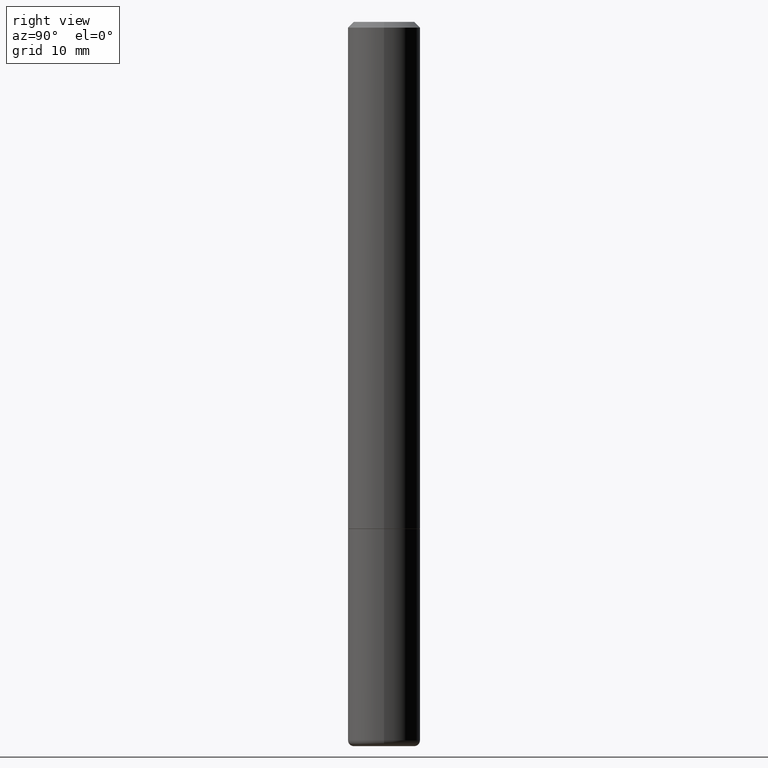
[diagram: clean part render]
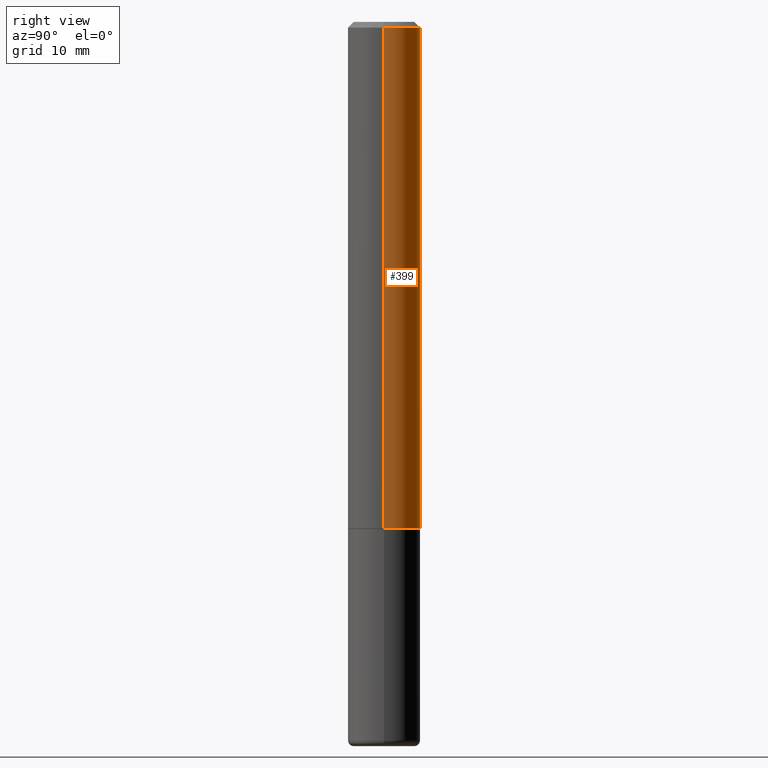
[diagram: same view with one face highlighted and labeled with its STEP entity id]
A machine part, right view. The second image highlights one B-rep face of the part: STEP entity #399.
In plain terms, the highlighted cylindrical surface (edge-blend (fillet) strip) has radius 3.175 mm, axis along (-0, 0, 1).
Its self-contained STEP definition (entity closure, byte-faithful):
#16 = DIRECTION ( 'NONE',  ( -2.445468806185136597E-29, 3.491481338843145583E-15, 1.000000000000000000 ) ) ;
#25 = CARTESIAN_POINT ( 'NONE',  ( -0.1249999999999999029, 8.881784197001245421E-16, -6.148668862818627323E-30 ) ) ;
#47 = VERTEX_POINT ( 'NONE', #113 ) ;
#50 = VERTEX_POINT ( 'NONE', #236 ) ;
#61 = DIRECTION ( 'NONE',  ( 1.000000000000000000, -6.982962677686266711E-15, 0.000000000000000000 ) ) ;
#81 = AXIS2_PLACEMENT_3D ( 'NONE', #305, #16, #125 ) ;
#100 = VERTEX_POINT ( 'NONE', #319 ) ;
#113 = CARTESIAN_POINT ( 'NONE',  ( -0.1249999999999997641, 8.030407079339185615E-16, -0.02000000000000003858 ) ) ;
#115 = CARTESIAN_POINT ( 'NONE',  ( 0.1250000000000000278, -6.979471196347445792E-15, -1.749000000000000110 ) ) ;
#125 = DIRECTION ( 'NONE',  ( 1.000000000000000000, -6.982962677686266711E-15, 4.876176775795935793E-29 ) ) ;
#163 = LINE ( 'NONE', #202, #439 ) ;
#166 = DIRECTION ( 'NONE',  ( -2.445468806185136597E-29, 3.491481338843145583E-15, 1.000000000000000000 ) ) ;
#179 = VECTOR ( 'NONE', #191, 39.37007874015748143 ) ;
#187 = ORIENTED_EDGE ( 'NONE', *, *, #354, .T. ) ;
#189 = CIRCLE ( 'NONE', #246, 0.1250000000000000278 ) ;
#191 = DIRECTION ( 'NONE',  ( -2.445468806185136877E-29, 3.491481338843145188E-15, 1.000000000000000000 ) ) ;
#193 = CYLINDRICAL_SURFACE ( 'NONE', #81, 0.1249999999999999029 ) ;
#202 = CARTESIAN_POINT ( 'NONE',  ( 0.1249999999999999029, -8.728703347107826486E-16, 6.095220969744914837E-30 ) ) ;
#221 = AXIS2_PLACEMENT_3D ( 'NONE', #372, #269, #61 ) ;
#224 = ORIENTED_EDGE ( 'NONE', *, *, #240, .F. ) ;
#236 = CARTESIAN_POINT ( 'NONE',  ( 0.1249999999999997641, -9.273918764983027713E-16, -0.02000000000000003858 ) ) ;
#240 = EDGE_CURVE ( 'NONE', #50, #47, #355, .T. ) ;
#246 = AXIS2_PLACEMENT_3D ( 'NONE', #330, #166, #427 ) ;
#263 = EDGE_LOOP ( 'NONE', ( #187, #397, #224, #382 ) ) ;
#269 = DIRECTION ( 'NONE',  ( -2.445468806185136597E-29, 3.491481338843145583E-15, 1.000000000000000000 ) ) ;
#297 = FACE_OUTER_BOUND ( 'NONE', #263, .T. ) ;
#305 = CARTESIAN_POINT ( 'NONE',  ( 0.000000000000000000, 0.000000000000000000, 0.000000000000000000 ) ) ;
#319 = CARTESIAN_POINT ( 'NONE',  ( -0.1250000000000000278, -2.200036824506634488E-15, -1.749000000000000110 ) ) ;
#330 = CARTESIAN_POINT ( 'NONE',  ( 4.277124942017804562E-29, -6.106600861636661664E-15, -1.749000000000000110 ) ) ;
#335 = DIRECTION ( 'NONE',  ( -2.445468806185136877E-29, 3.491481338843145188E-15, 1.000000000000000000 ) ) ;
#347 = VERTEX_POINT ( 'NONE', #115 ) ;
#354 = EDGE_CURVE ( 'NONE', #347, #100, #189, .T. ) ;
#355 = CIRCLE ( 'NONE', #221, 0.1249999999999997641 ) ;
#366 = EDGE_CURVE ( 'NONE', #347, #50, #163, .T. ) ;
#372 = CARTESIAN_POINT ( 'NONE',  ( 4.890937612370282792E-31, -6.982962677686303935E-17, -0.02000000000000003858 ) ) ;
#382 = ORIENTED_EDGE ( 'NONE', *, *, #366, .F. ) ;
#393 = EDGE_CURVE ( 'NONE', #100, #47, #396, .T. ) ;
#396 = LINE ( 'NONE', #25, #179 ) ;
#397 = ORIENTED_EDGE ( 'NONE', *, *, #393, .T. ) ;
#399 = ADVANCED_FACE ( 'NONE', ( #297 ), #193, .T. ) ;
#427 = DIRECTION ( 'NONE',  ( 1.000000000000000000, -6.982962677686269077E-15, 0.000000000000000000 ) ) ;
#439 = VECTOR ( 'NONE', #335, 39.37007874015748143 ) ;